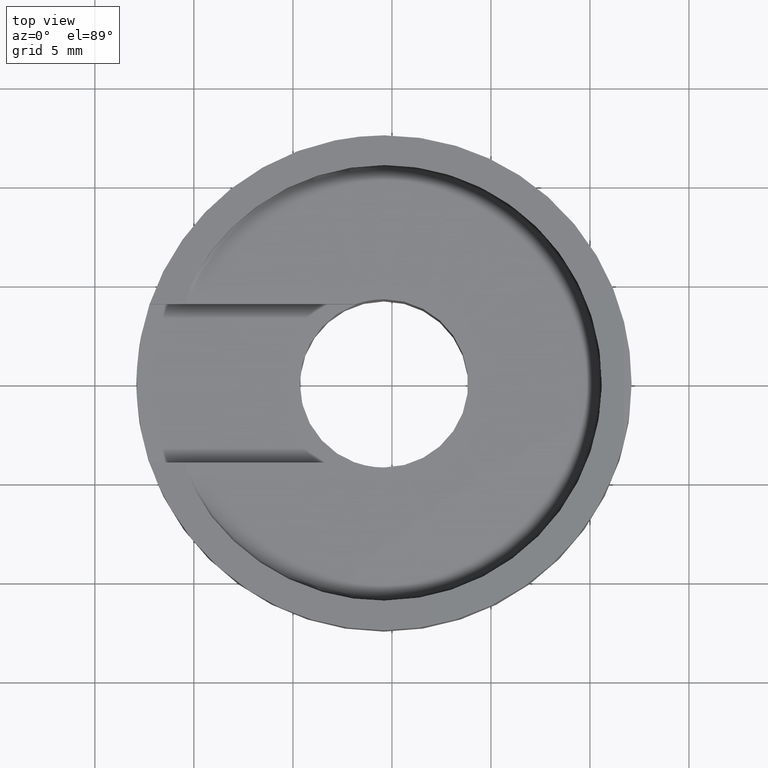
[diagram: clean part render]
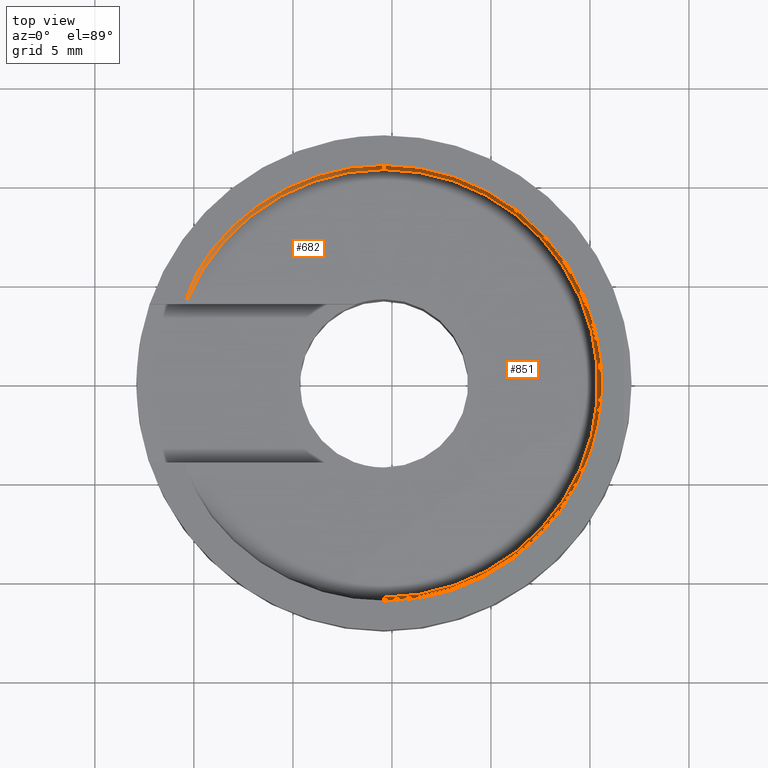
[diagram: same view with one multi-face feature highlighted, each face labeled with its STEP entity id]
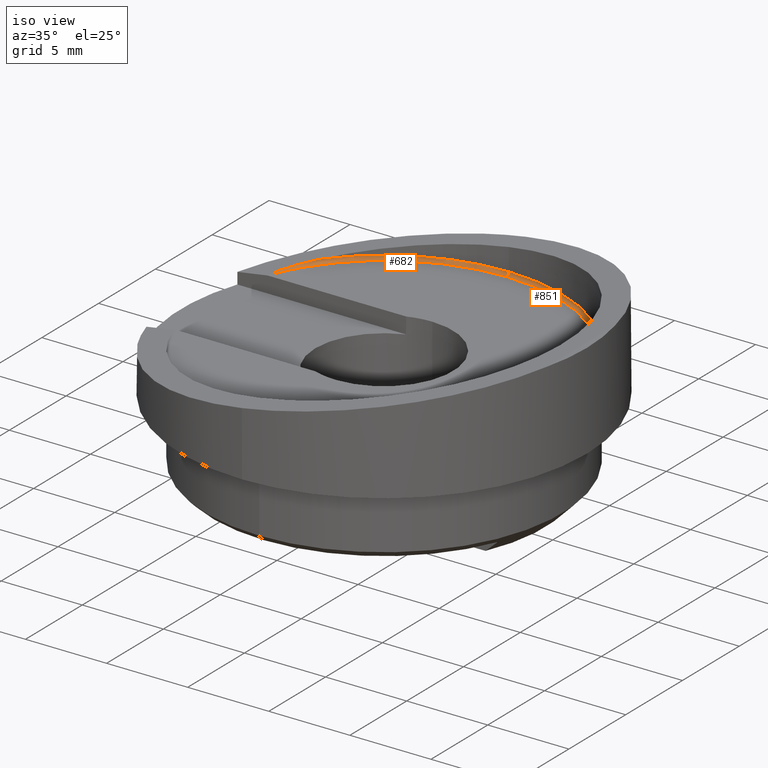
[diagram: same view with one multi-face feature highlighted, each face labeled with its STEP entity id]
A machine part, top view. The highlighted faces form ONE feature: a constant-radius fillet chain: 2 tangent blend faces with common blend radius 0.2 mm. The faces share edges in the B-rep.
A second angle (iso view) of the same feature is appended — it is thin or edge-on in the first view.
Their STEP definitions:
[1] entity #851 (Torus):
#10 = EDGE_CURVE ( 'NONE', #163, #866, #27, .T. ) ;
#27 = CIRCLE ( 'NONE', #839, 0.2000000000000005100 ) ;
#33 = FACE_OUTER_BOUND ( 'NONE', #123, .T. ) ;
#108 = VERTEX_POINT ( 'NONE', #871 ) ;
#123 = EDGE_LOOP ( 'NONE', ( #990, #903, #797, #526 ) ) ;
#163 = VERTEX_POINT ( 'NONE', #887 ) ;
#219 = DIRECTION ( 'NONE',  ( -1.000000000000000000, 1.109335647967048500E-031, 1.232595164407831800E-032 ) ) ;
#220 = DIRECTION ( 'NONE',  ( 1.232595164407831800E-032, -4.622231866529395500E-033, 1.000000000000000000 ) ) ;
#238 = CARTESIAN_POINT ( 'NONE',  ( 6.499999999999999100, 1.334865011070613900E-015, -10.79999999999999500 ) ) ;
#310 = VERTEX_POINT ( 'NONE', #627 ) ;
#454 = CIRCLE ( 'NONE', #488, 10.99999999999999800 ) ;
#468 = AXIS2_PLACEMENT_3D ( 'NONE', #756, #759, #760 ) ;
#473 = AXIS2_PLACEMENT_3D ( 'NONE', #665, #668, #670 ) ;
#488 = AXIS2_PLACEMENT_3D ( 'NONE', #700, #673, #661 ) ;
#526 = ORIENTED_EDGE ( 'NONE', *, *, #1005, .F. ) ;
#610 = AXIS2_PLACEMENT_3D ( 'NONE', #884, #219, #220 ) ;
#627 = CARTESIAN_POINT ( 'NONE',  ( 6.699999999999997500, -5.084455053182337700E-032, 10.99999999999999800 ) ) ;
#661 = DIRECTION ( 'NONE',  ( 0.0000000000000000000, -4.622231866529395500E-033, 1.000000000000000000 ) ) ;
#665 = CARTESIAN_POINT ( 'NONE',  ( 6.499999999999999100, 0.0000000000000000000, -2.958228394578794300E-028 ) ) ;
#668 = DIRECTION ( 'NONE',  ( -1.000000000000000000, 1.109335647967048500E-031, 1.232595164407831800E-032 ) ) ;
#670 = DIRECTION ( 'NONE',  ( 0.0000000000000000000, -4.622231866529395500E-033, 1.000000000000000000 ) ) ;
#673 = DIRECTION ( 'NONE',  ( -1.000000000000000000, 1.109335647967048500E-031, 1.232595164407831800E-032 ) ) ;
#680 = CIRCLE ( 'NONE', #473, 10.79999999999999700 ) ;
#700 = CARTESIAN_POINT ( 'NONE',  ( 6.699999999999997500, 0.0000000000000000000, 0.0000000000000000000 ) ) ;
#756 = CARTESIAN_POINT ( 'NONE',  ( 6.699999999999997500, -4.992010415851745800E-032, 10.79999999999999700 ) ) ;
#759 = DIRECTION ( 'NONE',  ( -1.109335647967048500E-031, -1.000000000000000000, -4.622231866529395500E-033 ) ) ;
#760 = DIRECTION ( 'NONE',  ( 1.000000000000000000, -1.109335647967051100E-031, 0.0000000000000000000 ) ) ;
#766 = DIRECTION ( 'NONE',  ( 1.109335647967048500E-031, 1.000000000000000000, 1.224646799147352500E-016 ) ) ;
#788 = CARTESIAN_POINT ( 'NONE',  ( 6.699999999999997500, 1.322618543079140300E-015, -10.79999999999999700 ) ) ;
#797 = ORIENTED_EDGE ( 'NONE', *, *, #975, .T. ) ;
#814 = DIRECTION ( 'NONE',  ( 0.0000000000000000000, -1.224646799147353200E-016, 1.000000000000000000 ) ) ;
#839 = AXIS2_PLACEMENT_3D ( 'NONE', #788, #766, #814 ) ;
#848 = CIRCLE ( 'NONE', #468, 0.2000000000000005100 ) ;
#851 = ADVANCED_FACE ( 'NONE', ( #33 ), #983, .F. ) ;
#866 = VERTEX_POINT ( 'NONE', #238 ) ;
#871 = CARTESIAN_POINT ( 'NONE',  ( 6.499999999999999100, -3.928897086550015900E-032, 10.79999999999999700 ) ) ;
#884 = CARTESIAN_POINT ( 'NONE',  ( 6.699999999999997500, 0.0000000000000000000, 0.0000000000000000000 ) ) ;
#887 = CARTESIAN_POINT ( 'NONE',  ( 6.699999999999997500, 1.347111479062087200E-015, -10.99999999999999800 ) ) ;
#903 = ORIENTED_EDGE ( 'NONE', *, *, #10, .T. ) ;
#967 = EDGE_CURVE ( 'NONE', #163, #310, #454, .T. ) ;
#975 = EDGE_CURVE ( 'NONE', #866, #108, #680, .T. ) ;
#983 = TOROIDAL_SURFACE ( 'NONE', #610, 10.79999999999999700, 0.2000000000000009500 ) ;
#990 = ORIENTED_EDGE ( 'NONE', *, *, #967, .F. ) ;
#1005 = EDGE_CURVE ( 'NONE', #310, #108, #848, .T. ) ;
[2] entity #682 (Torus):
#10 = EDGE_CURVE ( 'NONE', #163, #866, #27, .T. ) ;
#27 = CIRCLE ( 'NONE', #839, 0.2000000000000005100 ) ;
#74 = DIRECTION ( 'NONE',  ( -1.000000000000000000, 1.109335647967048500E-031, 1.232595164407831800E-032 ) ) ;
#76 = CARTESIAN_POINT ( 'NONE',  ( 6.699999999999997500, 0.0000000000000000000, 0.0000000000000000000 ) ) ;
#78 = DIRECTION ( 'NONE',  ( 1.232595164407831800E-032, -4.622231866529395500E-033, 1.000000000000000000 ) ) ;
#121 = CARTESIAN_POINT ( 'NONE',  ( 6.699999999999997500, 0.0000000000000000000, 0.0000000000000000000 ) ) ;
#125 = DIRECTION ( 'NONE',  ( -1.000000000000000000, 1.109335647967048500E-031, 1.232595164407831800E-032 ) ) ;
#133 = DIRECTION ( 'NONE',  ( 0.0000000000000000000, -4.622231866529395500E-033, 1.000000000000000000 ) ) ;
#134 = ORIENTED_EDGE ( 'NONE', *, *, #971, .T. ) ;
#152 = CARTESIAN_POINT ( 'NONE',  ( 6.499999999999995600, 9.974499394129900100, -4.141178797939364400 ) ) ;
#163 = VERTEX_POINT ( 'NONE', #887 ) ;
#175 = B_SPLINE_CURVE_WITH_KNOTS ( 'NONE', 3,
 ( #594, #601, #611, #616, #624, #628, #629, #640, #641, #644, #646, #650 ),
 .UNSPECIFIED., .F., .F.,
 ( 4, 2, 2, 2, 2, 4 ),
 ( 2.076736169275007200E-006, 0.001454727094849526100, 0.002181052274189652500, 0.002544214863859716300, 0.002725796158694747400, 0.002907377453529778900 ),
 .UNSPECIFIED. ) ;
#238 = CARTESIAN_POINT ( 'NONE',  ( 6.499999999999999100, 1.334865011070613900E-015, -10.79999999999999500 ) ) ;
#285 = ORIENTED_EDGE ( 'NONE', *, *, #703, .F. ) ;
#365 = CIRCLE ( 'NONE', #742, 10.79999999999999700 ) ;
#388 = EDGE_CURVE ( 'NONE', #761, #866, #365, .T. ) ;
#448 = ORIENTED_EDGE ( 'NONE', *, *, #10, .F. ) ;
#544 = VERTEX_POINT ( 'NONE', #793 ) ;
#594 = CARTESIAN_POINT ( 'NONE',  ( 6.699999999999997500, 8.711749091194855400, -6.716057457472022200 ) ) ;
#599 = EDGE_LOOP ( 'NONE', ( #448, #285, #134, #707 ) ) ;
#601 = CARTESIAN_POINT ( 'NONE',  ( 6.653376227369827600, 9.006120006258383300, -6.334213560510654000 ) ) ;
#611 = CARTESIAN_POINT ( 'NONE',  ( 6.612740822841638000, 9.262681853147686400, -5.925077066560166200 ) ) ;
#616 = CARTESIAN_POINT ( 'NONE',  ( 6.560980723289914900, 9.589482260092108100, -5.282200008724359500 ) ) ;
#624 = CARTESIAN_POINT ( 'NONE',  ( 6.545175519401420900, 9.689272390082859200, -5.061918335292499000 ) ) ;
#628 = CARTESIAN_POINT ( 'NONE',  ( 6.524452269739014400, 9.820113839027877500, -4.724148770049913200 ) ) ;
#629 = CARTESIAN_POINT ( 'NONE',  ( 6.518037948346576000, 9.860612270434986100, -4.610512283298122700 ) ) ;
#640 = CARTESIAN_POINT ( 'NONE',  ( 6.509579275765133800, 9.914018227258223300, -4.437591069637859300 ) ) ;
#641 = CARTESIAN_POINT ( 'NONE',  ( 6.506947879145750200, 9.930632211649580700, -4.379551549169412400 ) ) ;
#644 = CARTESIAN_POINT ( 'NONE',  ( 6.502411525203771500, 9.959273623221859500, -4.261931627673969400 ) ) ;
#646 = CARTESIAN_POINT ( 'NONE',  ( 6.499999999994418700, 9.974499394165071900, -4.202203574502764400 ) ) ;
#650 = CARTESIAN_POINT ( 'NONE',  ( 6.499999999999995600, 9.974499394129900100, -4.141178797939364400 ) ) ;
#658 = AXIS2_PLACEMENT_3D ( 'NONE', #121, #125, #133 ) ;
#672 = AXIS2_PLACEMENT_3D ( 'NONE', #76, #74, #78 ) ;
#682 = ADVANCED_FACE ( 'NONE', ( #821 ), #831, .F. ) ;
#703 = EDGE_CURVE ( 'NONE', #544, #163, #911, .T. ) ;
#707 = ORIENTED_EDGE ( 'NONE', *, *, #388, .T. ) ;
#742 = AXIS2_PLACEMENT_3D ( 'NONE', #794, #966, #1072 ) ;
#761 = VERTEX_POINT ( 'NONE', #152 ) ;
#766 = DIRECTION ( 'NONE',  ( 1.109335647967048500E-031, 1.000000000000000000, 1.224646799147352500E-016 ) ) ;
#788 = CARTESIAN_POINT ( 'NONE',  ( 6.699999999999997500, 1.322618543079140300E-015, -10.79999999999999700 ) ) ;
#793 = CARTESIAN_POINT ( 'NONE',  ( 6.699999999999997500, 8.711749091194855400, -6.716057457472022200 ) ) ;
#794 = CARTESIAN_POINT ( 'NONE',  ( 6.499999999999999100, 0.0000000000000000000, -2.958228394578794300E-028 ) ) ;
#814 = DIRECTION ( 'NONE',  ( 0.0000000000000000000, -1.224646799147353200E-016, 1.000000000000000000 ) ) ;
#821 = FACE_OUTER_BOUND ( 'NONE', #599, .T. ) ;
#831 = TOROIDAL_SURFACE ( 'NONE', #672, 10.79999999999999700, 0.2000000000000009500 ) ;
#839 = AXIS2_PLACEMENT_3D ( 'NONE', #788, #766, #814 ) ;
#866 = VERTEX_POINT ( 'NONE', #238 ) ;
#887 = CARTESIAN_POINT ( 'NONE',  ( 6.699999999999997500, 1.347111479062087200E-015, -10.99999999999999800 ) ) ;
#911 = CIRCLE ( 'NONE', #658, 10.99999999999999800 ) ;
#966 = DIRECTION ( 'NONE',  ( -1.000000000000000000, 1.109335647967048500E-031, 1.232595164407831800E-032 ) ) ;
#971 = EDGE_CURVE ( 'NONE', #544, #761, #175, .T. ) ;
#1072 = DIRECTION ( 'NONE',  ( 0.0000000000000000000, -4.622231866529395500E-033, 1.000000000000000000 ) ) ;